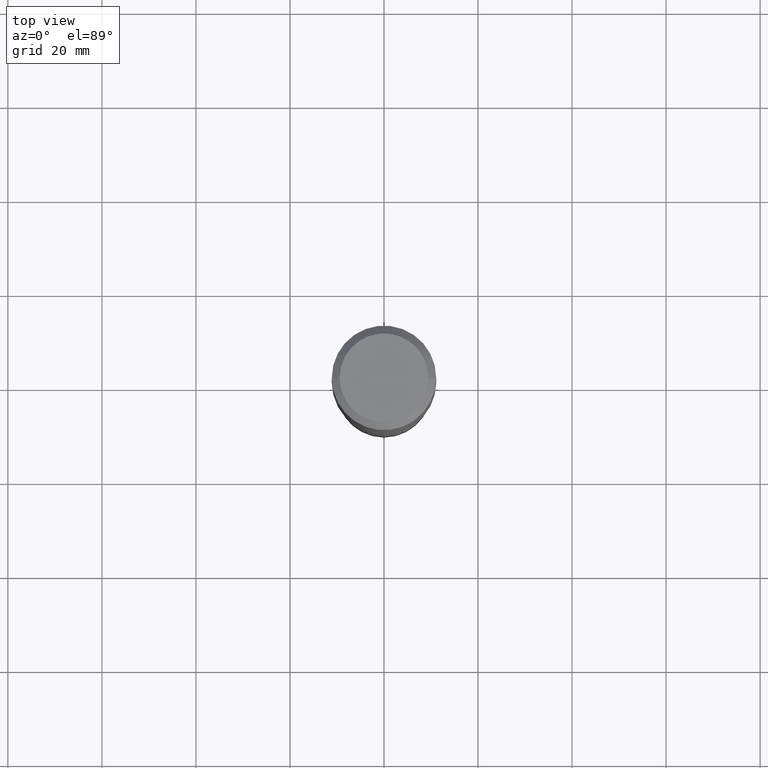
[diagram: clean part render]
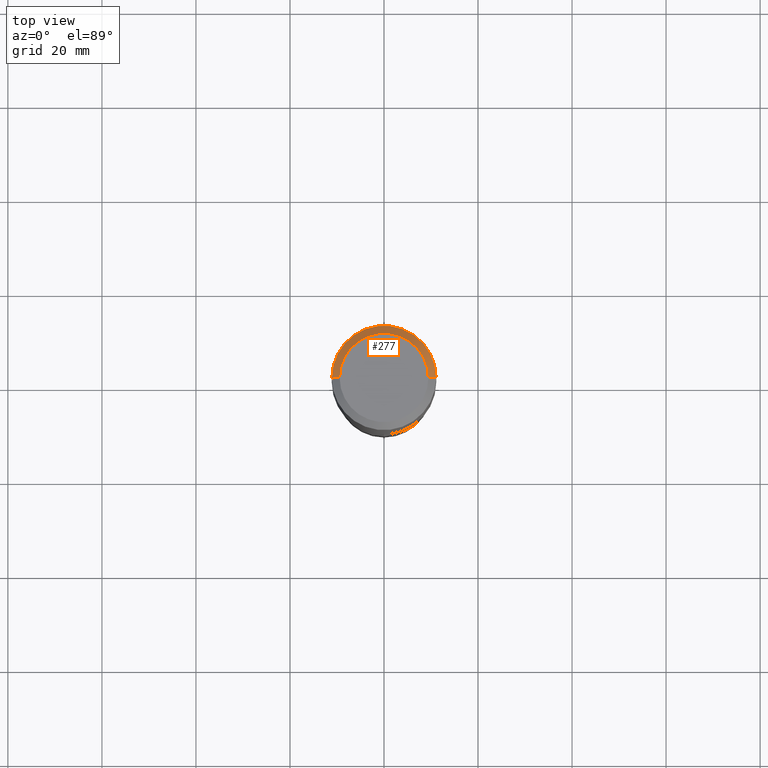
[diagram: same view with one face highlighted and labeled with its STEP entity id]
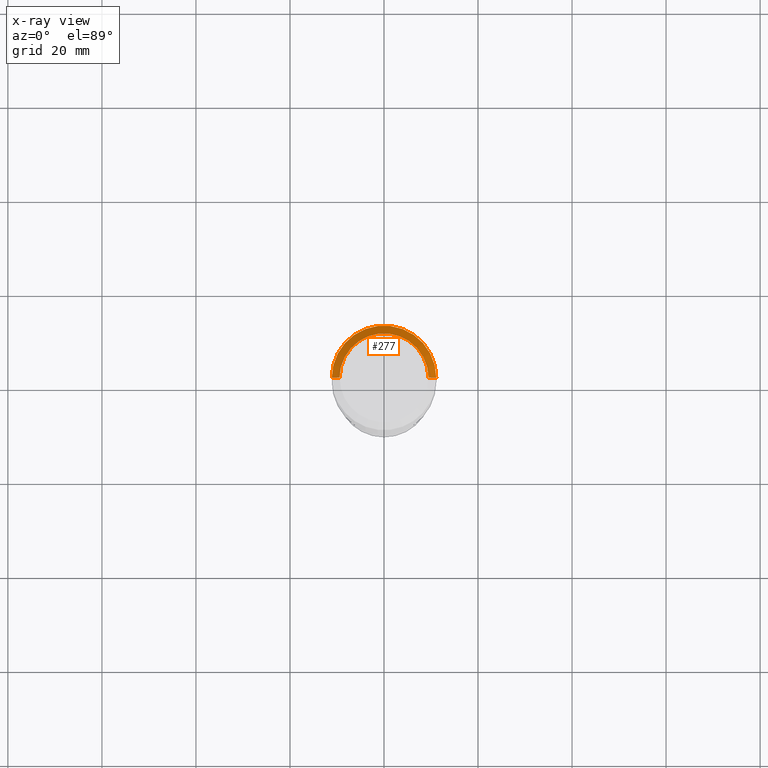
[diagram: x-ray of the same camera — body ghosted, the highlighted face saturated]
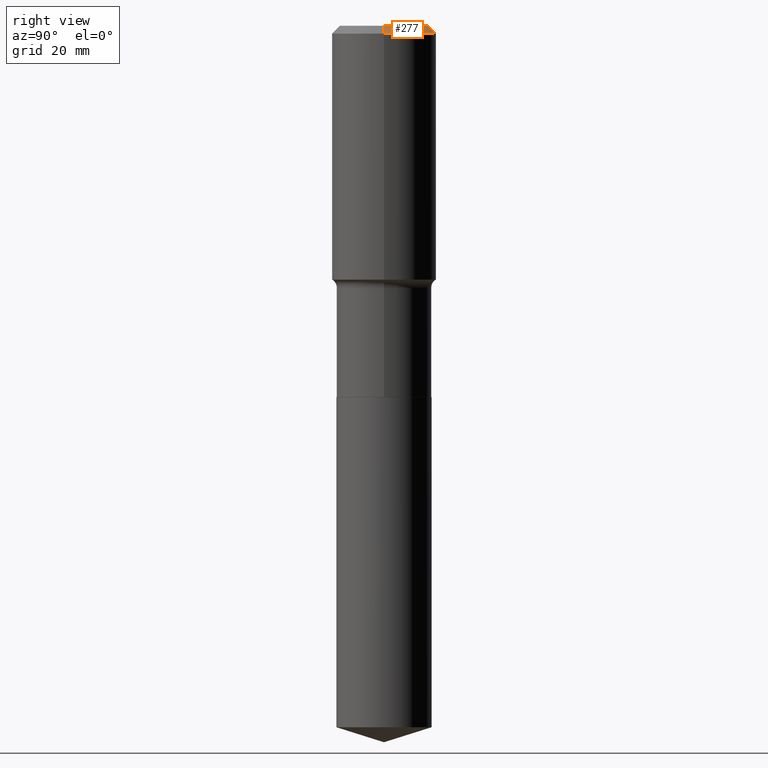
[diagram: same view with one face highlighted and labeled with its STEP entity id]
A machine part, top view. The second image highlights one B-rep face of the part: STEP entity #277.
The next image is the same camera in x-ray: the body ghosted, the highlighted face saturated — about 0% of this face is hidden behind the body in this view.
A second angle (right view) of the same face is appended — the face is thin or edge-on in the first view.
In plain terms, the highlighted conical surface has half-angle 45 deg.
Its self-contained STEP definition (entity closure, byte-faithful):
#17 = LINE ( 'NONE', #174, #468 ) ;
#31 = LINE ( 'NONE', #420, #141 ) ;
#41 = CARTESIAN_POINT ( 'NONE',  ( 1.604838904059006962E-30, -2.291284628615829930E-16, -0.06562500000000044686 ) ) ;
#44 = AXIS2_PLACEMENT_3D ( 'NONE', #41, #190, #413 ) ;
#49 = DIRECTION ( 'NONE',  ( -2.445468806185136597E-29, 3.491481338843145583E-15, 1.000000000000000000 ) ) ;
#80 = CARTESIAN_POINT ( 'NONE',  ( -0.4375000000000000000, -7.163739484691917690E-16, -0.06562500000000044686 ) ) ;
#141 = VECTOR ( 'NONE', #341, 39.37007874015748143 ) ;
#166 = CARTESIAN_POINT ( 'NONE',  ( -1.591006383764329579E-46, 2.271535455632766759E-32, 6.505936120470313374E-18 ) ) ;
#169 = CONICAL_SURFACE ( 'NONE', #44, 0.4375000000000000000, 0.7853981633974447263 ) ;
#174 = CARTESIAN_POINT ( 'NONE',  ( 0.4375000000000000000, -3.230596336886627854E-15, -0.06562500000000044686 ) ) ;
#190 = DIRECTION ( 'NONE',  ( 2.445468806185136597E-29, -3.491481338843145583E-15, -1.000000000000000000 ) ) ;
#207 = EDGE_CURVE ( 'NONE', #295, #291, #17, .T. ) ;
#223 = CARTESIAN_POINT ( 'NONE',  ( 0.3718749999999999556, -2.890922014903958629E-15, 6.505936120489500258E-18 ) ) ;
#225 = CIRCLE ( 'NONE', #430, 0.4375000000000000000 ) ;
#258 = CARTESIAN_POINT ( 'NONE',  ( 0.4375000000000000000, -3.284174634349324876E-15, -0.06562500000000044686 ) ) ;
#267 = FACE_OUTER_BOUND ( 'NONE', #462, .T. ) ;
#277 = ADVANCED_FACE ( 'NONE', ( #267 ), #169, .T. ) ;
#291 = VERTEX_POINT ( 'NONE', #258 ) ;
#294 = DIRECTION ( 'NONE',  ( 0.7071067811865450192, -7.319954787623246579E-15, -0.7071067811865500152 ) ) ;
#295 = VERTEX_POINT ( 'NONE', #223 ) ;
#312 = DIRECTION ( 'NONE',  ( 1.000000000000000000, -6.982962677686267499E-15, 4.876184966057910179E-29 ) ) ;
#313 = CARTESIAN_POINT ( 'NONE',  ( 1.604838904059006962E-30, -2.291284628615829930E-16, -0.06562500000000044686 ) ) ;
#316 = CIRCLE ( 'NONE', #379, 0.3718749999999999556 ) ;
#341 = DIRECTION ( 'NONE',  ( -0.7071067811865450192, 2.468850131082230634E-15, -0.7071067811865500152 ) ) ;
#349 = EDGE_CURVE ( 'NONE', #363, #409, #31, .T. ) ;
#355 = DIRECTION ( 'NONE',  ( 1.000000000000000000, -6.982962677686266711E-15, 0.000000000000000000 ) ) ;
#359 = ORIENTED_EDGE ( 'NONE', *, *, #470, .T. ) ;
#363 = VERTEX_POINT ( 'NONE', #485 ) ;
#379 = AXIS2_PLACEMENT_3D ( 'NONE', #166, #49, #312 ) ;
#386 = ORIENTED_EDGE ( 'NONE', *, *, #207, .T. ) ;
#387 = DIRECTION ( 'NONE',  ( -2.445468806185136597E-29, 3.491481338843145583E-15, 1.000000000000000000 ) ) ;
#388 = ORIENTED_EDGE ( 'NONE', *, *, #486, .F. ) ;
#409 = VERTEX_POINT ( 'NONE', #80 ) ;
#413 = DIRECTION ( 'NONE',  ( -1.000000000000000000, 6.982962677686266711E-15, 0.000000000000000000 ) ) ;
#420 = CARTESIAN_POINT ( 'NONE',  ( -0.4375000000000000000, 2.825917708626158101E-15, -0.06562500000000044686 ) ) ;
#430 = AXIS2_PLACEMENT_3D ( 'NONE', #313, #387, #355 ) ;
#462 = EDGE_LOOP ( 'NONE', ( #388, #386, #359, #474 ) ) ;
#468 = VECTOR ( 'NONE', #294, 39.37007874015748143 ) ;
#470 = EDGE_CURVE ( 'NONE', #291, #409, #225, .T. ) ;
#474 = ORIENTED_EDGE ( 'NONE', *, *, #349, .F. ) ;
#485 = CARTESIAN_POINT ( 'NONE',  ( -0.3718749999999999556, 2.711353477195369464E-15, 6.505936120451752031E-18 ) ) ;
#486 = EDGE_CURVE ( 'NONE', #295, #363, #316, .T. ) ;